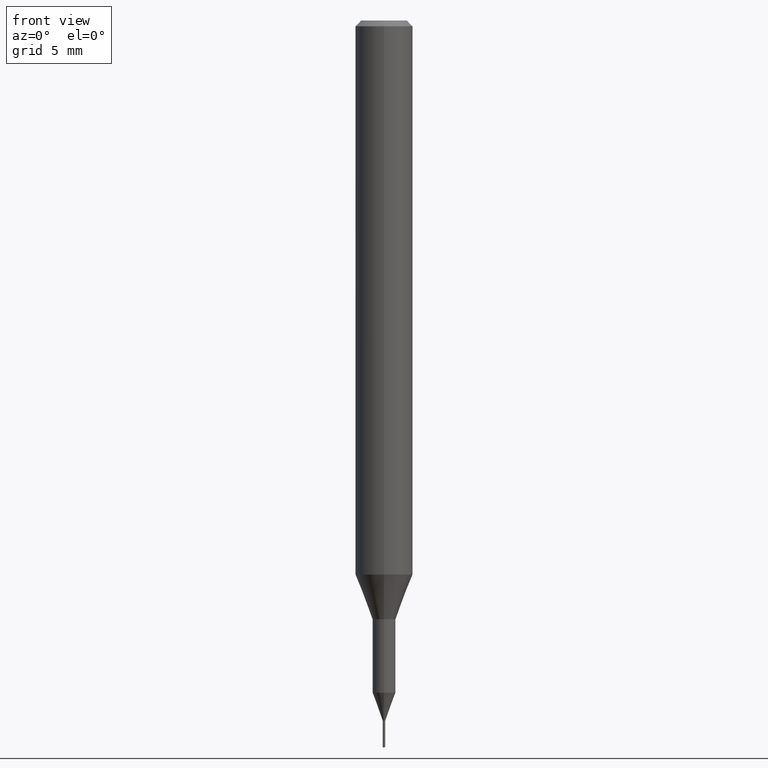
[diagram: clean part render]
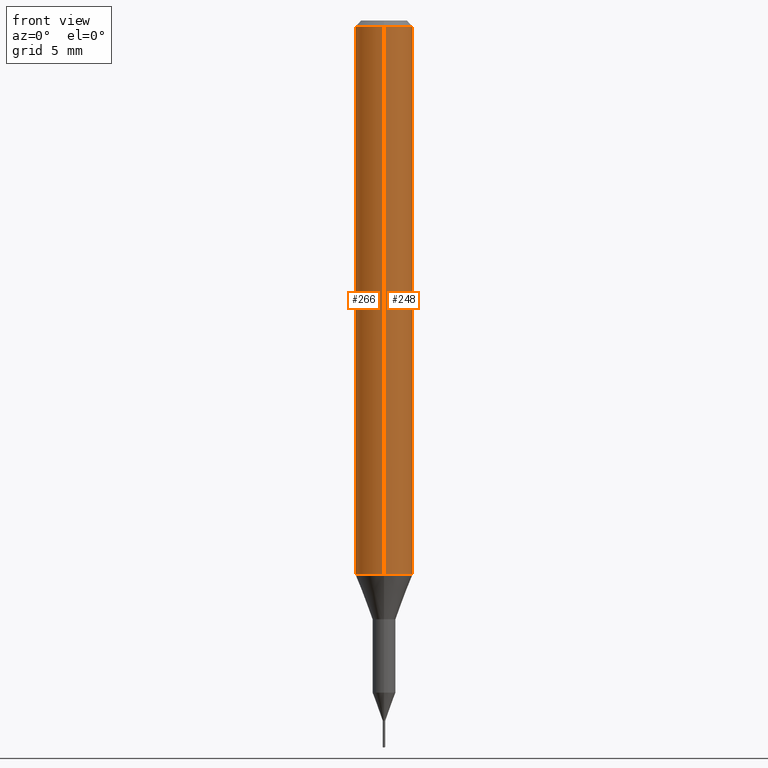
[diagram: same view with one multi-face feature highlighted, each face labeled with its STEP entity id]
A machine part, front view. The highlighted faces form ONE feature: a constant-radius fillet chain: 2 tangent blend faces with common blend radius 1.5 mm. The faces share edges in the B-rep.
Their STEP definitions:
[1] entity #248 (Cylinder):
#116=EDGE_CURVE('',#220,#246,#294,.T.);
#124=EDGE_CURVE('',#170,#220,#302,.T.);
#134=EDGE_CURVE('',#246,#214,#312,.T.);
#170=VERTEX_POINT('',#355);
#214=VERTEX_POINT('',#404);
#220=VERTEX_POINT('',#410);
#240=EDGE_CURVE('',#170,#214,#432,.T.);
#246=VERTEX_POINT('',#438);
#248=ADVANCED_FACE('',(#440),#441,.T.);
#294=CIRCLE('',#485,1.5);
#302=LINE('',#498,#499);
#312=LINE('',#514,#515);
#355=CARTESIAN_POINT('',(0.0,1.5,-0.300000000000001));
#404=CARTESIAN_POINT('',(1.83690953073357E-016,-1.5,-0.300000000000001));
#410=CARTESIAN_POINT('',(0.0,1.5,-28.955));
#432=CIRCLE('',#667,1.5);
#438=CARTESIAN_POINT('',(1.83690953073357E-016,-1.5,-28.955));
#440=FACE_OUTER_BOUND('',#679,.T.);
#441=CYLINDRICAL_SURFACE('',#680,1.5);
#485=AXIS2_PLACEMENT_3D('',#716,#717,#718);
#498=CARTESIAN_POINT('',(-1.83690953073357E-016,1.5,-14.6275));
#499=VECTOR('',#726,1.0);
#514=CARTESIAN_POINT('',(1.83690953073357E-016,-1.5,-14.6275));
#515=VECTOR('',#733,1.0);
#667=AXIS2_PLACEMENT_3D('',#890,#891,#892);
#679=EDGE_LOOP('',(#896,#897,#898,#899));
#680=AXIS2_PLACEMENT_3D('',#900,#901,#902);
#716=CARTESIAN_POINT('',(0.0,0.0,-28.955));
#717=DIRECTION('',(0.0,0.0,-1.0));
#718=DIRECTION('',(0.0,1.0,0.0));
#726=DIRECTION('',(0.0,0.0,-1.0));
#733=DIRECTION('',(-0.0,-0.0,1.0));
#890=CARTESIAN_POINT('',(0.0,0.0,-0.300000000000001));
#891=DIRECTION('',(0.0,0.0,-1.0));
#892=DIRECTION('',(0.0,1.0,0.0));
#896=ORIENTED_EDGE('',*,*,#124,.F.);
#897=ORIENTED_EDGE('',*,*,#240,.T.);
#898=ORIENTED_EDGE('',*,*,#134,.F.);
#899=ORIENTED_EDGE('',*,*,#116,.F.);
#900=CARTESIAN_POINT('',(0.0,0.0,-14.6275));
#901=DIRECTION('',(-0.0,-0.0,1.0));
#902=DIRECTION('',(0.0,1.0,0.0));
[2] entity #266 (Cylinder):
#124=EDGE_CURVE('',#170,#220,#302,.T.);
#126=EDGE_CURVE('',#246,#220,#304,.T.);
#134=EDGE_CURVE('',#246,#214,#312,.T.);
#170=VERTEX_POINT('',#355);
#190=EDGE_CURVE('',#214,#170,#375,.T.);
#214=VERTEX_POINT('',#404);
#220=VERTEX_POINT('',#410);
#246=VERTEX_POINT('',#438);
#266=ADVANCED_FACE('',(#463),#464,.T.);
#302=LINE('',#498,#499);
#304=CIRCLE('',#502,1.5);
#312=LINE('',#514,#515);
#355=CARTESIAN_POINT('',(0.0,1.5,-0.300000000000001));
#375=CIRCLE('',#598,1.5);
#404=CARTESIAN_POINT('',(1.83690953073357E-016,-1.5,-0.300000000000001));
#410=CARTESIAN_POINT('',(0.0,1.5,-28.955));
#438=CARTESIAN_POINT('',(1.83690953073357E-016,-1.5,-28.955));
#463=FACE_OUTER_BOUND('',#702,.T.);
#464=CYLINDRICAL_SURFACE('',#703,1.5);
#498=CARTESIAN_POINT('',(-1.83690953073357E-016,1.5,-14.6275));
#499=VECTOR('',#726,1.0);
#502=AXIS2_PLACEMENT_3D('',#727,#728,#729);
#514=CARTESIAN_POINT('',(1.83690953073357E-016,-1.5,-14.6275));
#515=VECTOR('',#733,1.0);
#598=AXIS2_PLACEMENT_3D('',#812,#813,#814);
#702=EDGE_LOOP('',(#928,#929,#930,#931));
#703=AXIS2_PLACEMENT_3D('',#932,#933,#934);
#726=DIRECTION('',(0.0,0.0,-1.0));
#727=CARTESIAN_POINT('',(0.0,0.0,-28.955));
#728=DIRECTION('',(0.0,0.0,-1.0));
#729=DIRECTION('',(0.0,1.0,0.0));
#733=DIRECTION('',(-0.0,-0.0,1.0));
#812=CARTESIAN_POINT('',(0.0,0.0,-0.300000000000001));
#813=DIRECTION('',(0.0,0.0,-1.0));
#814=DIRECTION('',(0.0,1.0,0.0));
#928=ORIENTED_EDGE('',*,*,#124,.T.);
#929=ORIENTED_EDGE('',*,*,#126,.F.);
#930=ORIENTED_EDGE('',*,*,#134,.T.);
#931=ORIENTED_EDGE('',*,*,#190,.T.);
#932=CARTESIAN_POINT('',(0.0,0.0,-14.6275));
#933=DIRECTION('',(-0.0,-0.0,1.0));
#934=DIRECTION('',(0.0,1.0,0.0));